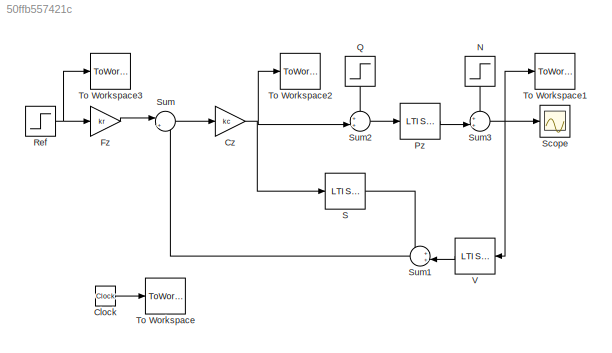
MODEL slx_50ffb557421c
KIND model
CONFIG AbsTol = auto
CONFIG EnableMultiTasking = off
CONFIG FixedStep = auto
CONFIG MaxStep = auto
CONFIG MinStep = auto
CONFIG RelTol = 1e-3
CONFIG SampleTimeConstraint = Unconstrained
CONFIG SolverName = VariableStepAuto
CONFIG StartTime = 0.0
CONFIG StopTime = Tsim
BLOCK [Clock] Clock
BLOCK [Gain] Cz
  Gain = kc
BLOCK [Gain] Fz
  Gain = kr
BLOCK [Step] N
  After = finalnoisevalue
  Before = initialnoisevalue
  NameLocation = left
  SampleTime = Ts
  Time = Tnoise
BLOCK [Reference] Pz  REF=cstblocks/LTI System
  SourceBlock = cstblocks/LTI System
  SourceType = LTI Block
BLOCK [Step] Q
  After = finaldisturbancevalue
  Before = initialdisturbancevalue
  NameLocation = left
  SampleTime = Ts
  Time = Tdisturbance
BLOCK [Step] Ref
  After = finalreferencevalue
  Before = initialreferencevalue
  SampleTime = Ts
  Time = Tref
BLOCK [Reference] S  REF=cstblocks/LTI System
  SourceBlock = cstblocks/LTI System
  SourceType = LTI Block
BLOCK [Scope] Scope
  Floating = off
  NumInputPorts = 1
  ScopeSpecificationString = Simulink.scopes.TimeScopeBlockCfg('CurrentConfiguration', extmgr.ConfigurationSet(extmgr.Configuration('Core','General UI',true),extmgr.Configuration('Core','Source UI',true),extmgr.Configuration('Sources','WiredSimulink',true),extmgr.Configuration('Visuals','Time Domain',true,'SerializedDisplays',{struct('MinYLimReal','-61608598765511731777240415786046465186469258054345237095188677634888387383716...<+2198ch>
BLOCK [Sum] Sum
  Inputs = |+-
BLOCK [Sum] Sum1
  Inputs = ++|
  NameLocation = top
BLOCK [Sum] Sum2
  Inputs = ++|
BLOCK [Sum] Sum3
  Inputs = ++|
BLOCK [ToWorkspace] To Workspace
  FixptAsFi = on
  MaxDataPoints = inf
  SampleTime = Ts
  SaveFormat = Timeseries
  VariableName = sfsp_time
BLOCK [ToWorkspace] To Workspace1
  FixptAsFi = on
  MaxDataPoints = inf
  SampleTime = Ts
  SaveFormat = Timeseries
  VariableName = sfsp_y
BLOCK [ToWorkspace] To Workspace2
  FixptAsFi = on
  MaxDataPoints = inf
  SampleTime = Ts
  SaveFormat = Timeseries
  VariableName = sfsp_u
BLOCK [ToWorkspace] To Workspace3
  FixptAsFi = on
  MaxDataPoints = inf
  SampleTime = Ts
  SaveFormat = Timeseries
  VariableName = sfsp_ref
BLOCK [Reference] V  REF=cstblocks/LTI System
  SourceBlock = cstblocks/LTI System
  SourceType = LTI Block
LINE Clock:1 -> To Workspace:1
NET Cz:1 -> S:1, Sum2:2, To Workspace2:1
LINE Fz:1 -> Sum:1
LINE N:1 -> Sum3:1
LINE Pz:1 -> Sum3:2
LINE Q:1 -> Sum2:1
NET Ref:1 -> Fz:1, To Workspace3:1
LINE S:1 -> Sum1:1
LINE Sum1:1 -> Sum:2
LINE Sum2:1 -> Pz:1
NET Sum3:1 -> Scope:1, To Workspace1:1, V:1
LINE Sum:1 -> Cz:1
LINE V:1 -> Sum1:2
note: NET lines group one-source signal fan-out (src -> all destinations, sorted); 1:1 wires keep LINE
